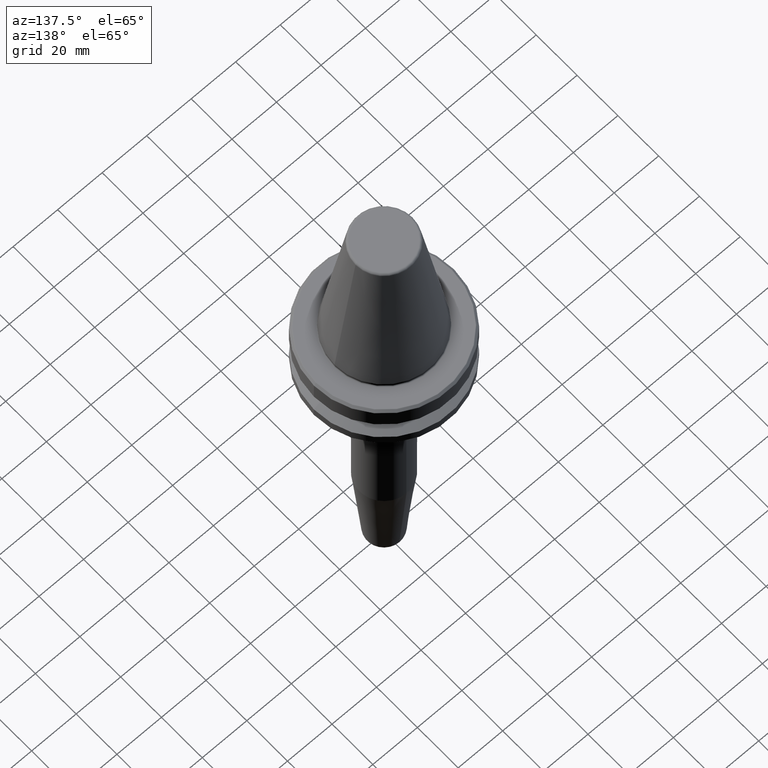
[diagram: clean part render]
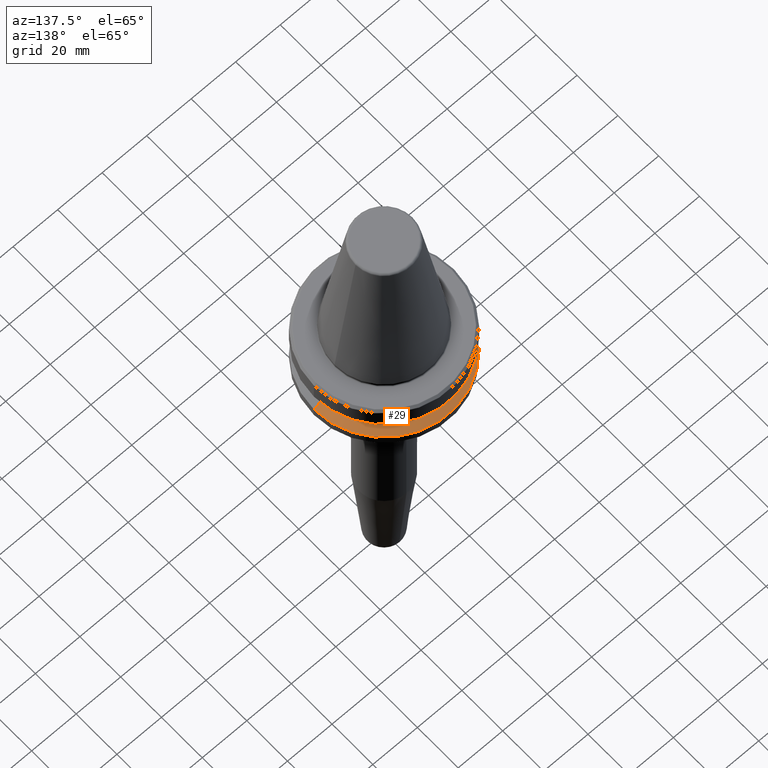
[diagram: same view with one face highlighted and labeled with its STEP entity id]
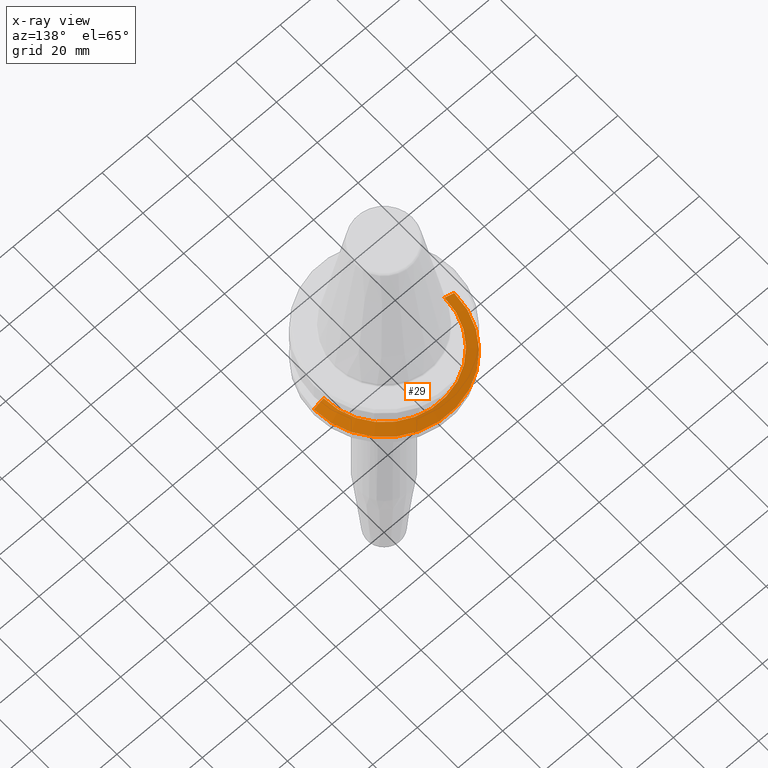
[diagram: x-ray of the same camera — body ghosted, the highlighted face saturated]
A machine part, auxiliary view. The second image highlights one B-rep face of the part: STEP entity #29.
The next image is the same camera in x-ray: the body ghosted, the highlighted face saturated — about 0% of this face is hidden behind the body in this view.
In plain terms, the highlighted conical surface has half-angle 60 deg.
Its self-contained STEP definition (entity closure, byte-faithful):
#29 = ADVANCED_FACE ( 'NONE', ( #455 ), #808, .T. ) ;
#56 = CARTESIAN_POINT ( 'NONE',  ( 0.0000000000000000000, 0.0000000000000000000, -21.60014200631675500 ) ) ;
#87 = CARTESIAN_POINT ( 'NONE',  ( 27.16962701892216700, 3.327319676275047600E-015, -19.10000000000000500 ) ) ;
#151 = EDGE_CURVE ( 'NONE', #1127, #981, #1183, .T. ) ;
#163 = DIRECTION ( 'NONE',  ( 1.000000000000000000, 0.0000000000000000000, 0.0000000000000000000 ) ) ;
#185 = DIRECTION ( 'NONE',  ( 0.8660254037844403700, 1.060575238724909000E-016, -0.4999999999999970000 ) ) ;
#195 = AXIS2_PLACEMENT_3D ( 'NONE', #56, #749, #163 ) ;
#260 = DIRECTION ( 'NONE',  ( -0.0000000000000000000, -0.0000000000000000000, 1.000000000000000000 ) ) ;
#334 = DIRECTION ( 'NONE',  ( -1.000000000000000000, 0.0000000000000000000, 0.0000000000000000000 ) ) ;
#347 = CARTESIAN_POINT ( 'NONE',  ( 0.0000000000000000000, 0.0000000000000000000, -19.10000000000000500 ) ) ;
#394 = CARTESIAN_POINT ( 'NONE',  ( -27.16962701892216700, 0.0000000000000000000, -19.10000000000000500 ) ) ;
#455 = FACE_OUTER_BOUND ( 'NONE', #919, .T. ) ;
#603 = VERTEX_POINT ( 'NONE', #668 ) ;
#631 = ORIENTED_EDGE ( 'NONE', *, *, #1139, .T. ) ;
#668 = CARTESIAN_POINT ( 'NONE',  ( 27.16962701892216700, 3.592478546794605500E-015, -19.10000000000000500 ) ) ;
#719 = EDGE_CURVE ( 'NONE', #603, #933, #1013, .T. ) ;
#733 = VECTOR ( 'NONE', #185, 1000.000000000000000 ) ;
#736 = CARTESIAN_POINT ( 'NONE',  ( -31.50000000000000000, 3.857637417314162700E-015, -21.60014200631675500 ) ) ;
#740 = CIRCLE ( 'NONE', #195, 31.50000000000000000 ) ;
#749 = DIRECTION ( 'NONE',  ( -0.0000000000000000000, -0.0000000000000000000, 1.000000000000000000 ) ) ;
#808 = CONICAL_SURFACE ( 'NONE', #969, 27.16962701892216700, 1.047197551196601200 ) ;
#811 = ORIENTED_EDGE ( 'NONE', *, *, #719, .T. ) ;
#838 = CARTESIAN_POINT ( 'NONE',  ( 0.0000000000000000000, 0.0000000000000000000, -19.10000000000000500 ) ) ;
#841 = CARTESIAN_POINT ( 'NONE',  ( -27.16962701892216700, 0.0000000000000000000, -19.10000000000000500 ) ) ;
#850 = DIRECTION ( 'NONE',  ( 0.0000000000000000000, 0.0000000000000000000, -1.000000000000000000 ) ) ;
#866 = DIRECTION ( 'NONE',  ( -0.8660254037844403700, 0.0000000000000000000, -0.4999999999999970000 ) ) ;
#908 = VECTOR ( 'NONE', #866, 1000.000000000000000 ) ;
#919 = EDGE_LOOP ( 'NONE', ( #1097, #811, #631, #943 ) ) ;
#926 = CARTESIAN_POINT ( 'NONE',  ( 31.50000000000000000, 0.0000000000000000000, -21.60014200631675500 ) ) ;
#932 = DIRECTION ( 'NONE',  ( 1.000000000000000000, 0.0000000000000000000, 0.0000000000000000000 ) ) ;
#933 = VERTEX_POINT ( 'NONE', #926 ) ;
#943 = ORIENTED_EDGE ( 'NONE', *, *, #151, .F. ) ;
#969 = AXIS2_PLACEMENT_3D ( 'NONE', #347, #850, #334 ) ;
#981 = VERTEX_POINT ( 'NONE', #736 ) ;
#1013 = LINE ( 'NONE', #87, #733 ) ;
#1077 = EDGE_CURVE ( 'NONE', #603, #1127, #1270, .T. ) ;
#1097 = ORIENTED_EDGE ( 'NONE', *, *, #1077, .F. ) ;
#1127 = VERTEX_POINT ( 'NONE', #841 ) ;
#1139 = EDGE_CURVE ( 'NONE', #933, #981, #740, .T. ) ;
#1183 = LINE ( 'NONE', #394, #908 ) ;
#1270 = CIRCLE ( 'NONE', #1274, 27.16962701892216700 ) ;
#1274 = AXIS2_PLACEMENT_3D ( 'NONE', #838, #260, #932 ) ;